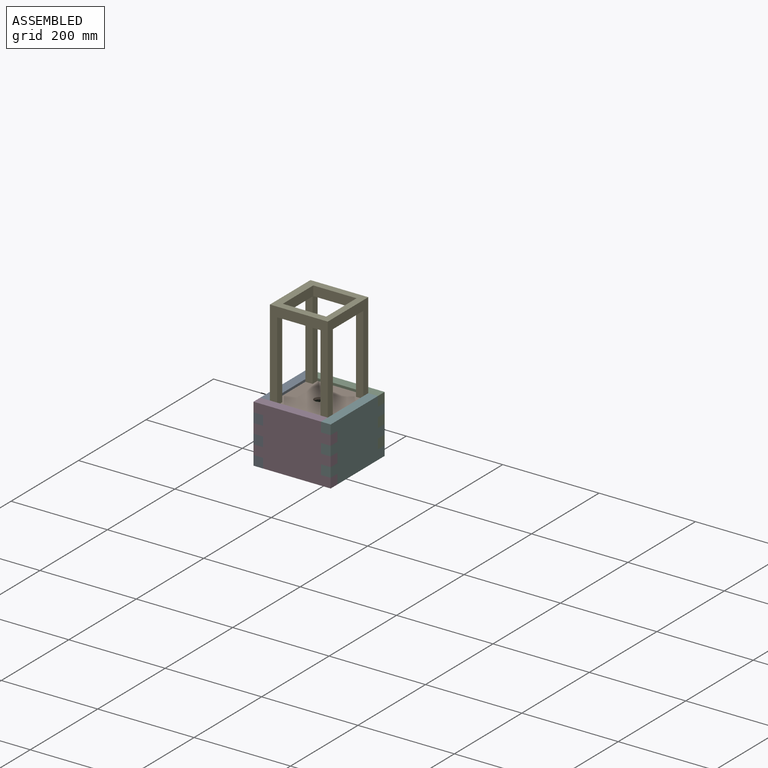
[diagram: assembled view]
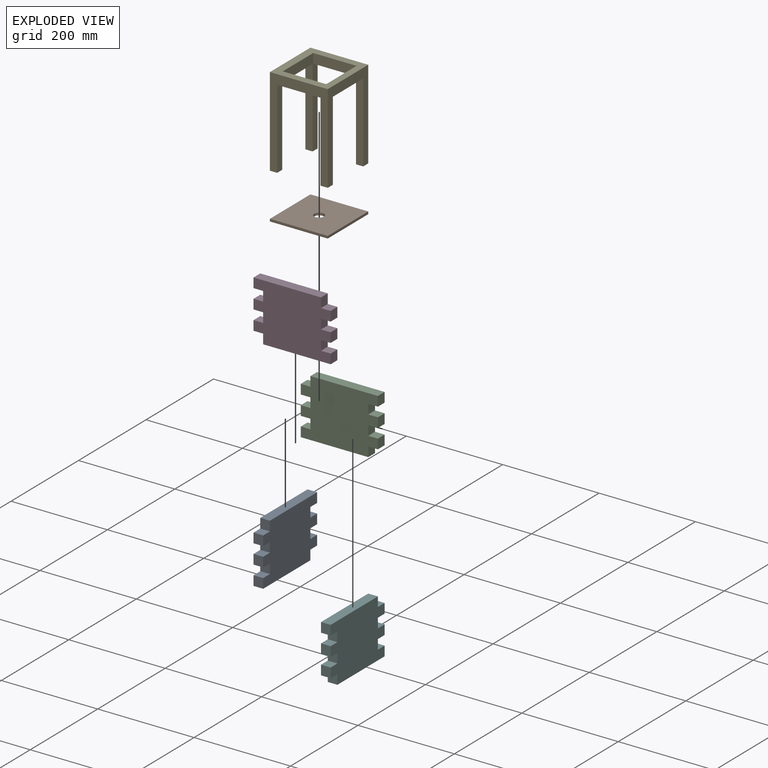
[diagram: exploded view]
GUIDED TOUR — MATED ASSEMBLY (Onshape document 1cd0963bb380c119aadb11ec, AutoMate assembly 1cd0963bb380c119aadb11ec_674d7fba9eb52455e5225506_035da7add2afbb42834716fa_default)

This assembly has 6 components, labeled P0..P5 below (a component is one placed occurrence of a part; the same part can appear more than once), held together by 4 mates. A mate is a constraint between two components; its type names the relative motion it leaves free:
  FASTENED — locks the two components together rigidly (no relative motion).
Axis/direction vectors are unit vectors and 'through' points are millimeter coordinates, both in the assembly's world frame.

MATES
  1. FASTENED "Fastened 2": P3 <-> P5, direction (0.000, 0.000, 1.000) through (-125.03, -306.60, 120.94) mm
  2. FASTENED "Fastened 3": P0 <-> P3, direction (0.000, 0.000, 1.000) through (-265.03, -306.60, 120.94) mm
  3. FASTENED "Fastened 1": P5 <-> P2, direction (0.000, 0.000, 1.000) through (-125.03, -166.60, 120.94) mm
  4. FASTENED "Fastened 5": P1 <-> P4, direction (0.000, 0.000, 1.000) through (-255.03, -296.60, 135.94) mm

ASSEMBLY ORDER
  1. P2 — the base component [order verified]
  2. P0 [order verified]
  3. P3 [order verified]
  4. P5 [order verified]
  5. P1 [order verified]
  6. P4 [order verified]
Order-tag legend:
  [order verified] — this step's position reverses a verified removal order: the component was checked to insert without passing through the ones already placed.

Of the 6 components, 6 carry the full construction recipe — the FeatureScript program that regenerates the part's solid from scratch; the rest are supplied as boundary geometry only.
Each toured component is shown spotlighted twice — in the assembled view, then in the exploded view, where a leader line traces a displaced component back to its assembled socket (saturated green if recipe-attached, orange if geometry-only; every other component desaturated gray) — followed by its recipe or geometry summary and the mates that hold it.
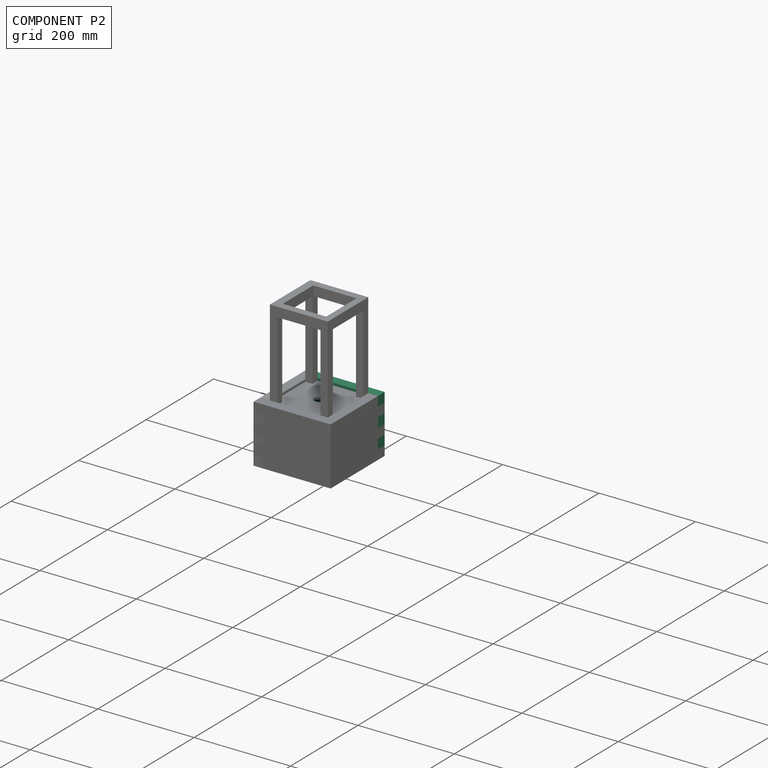
[diagram: component P2 — assembled]
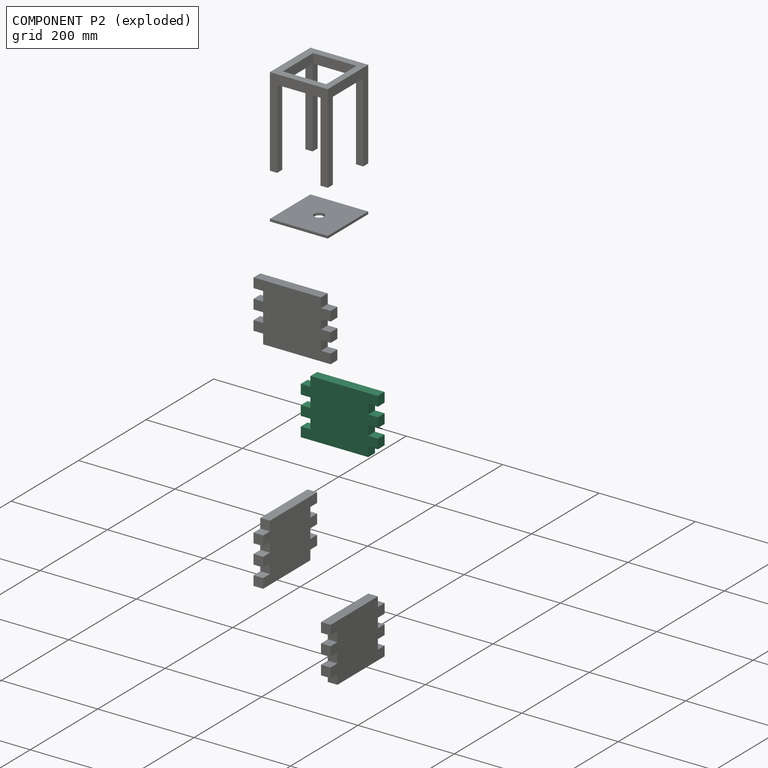
[diagram: component P2 — exploded]
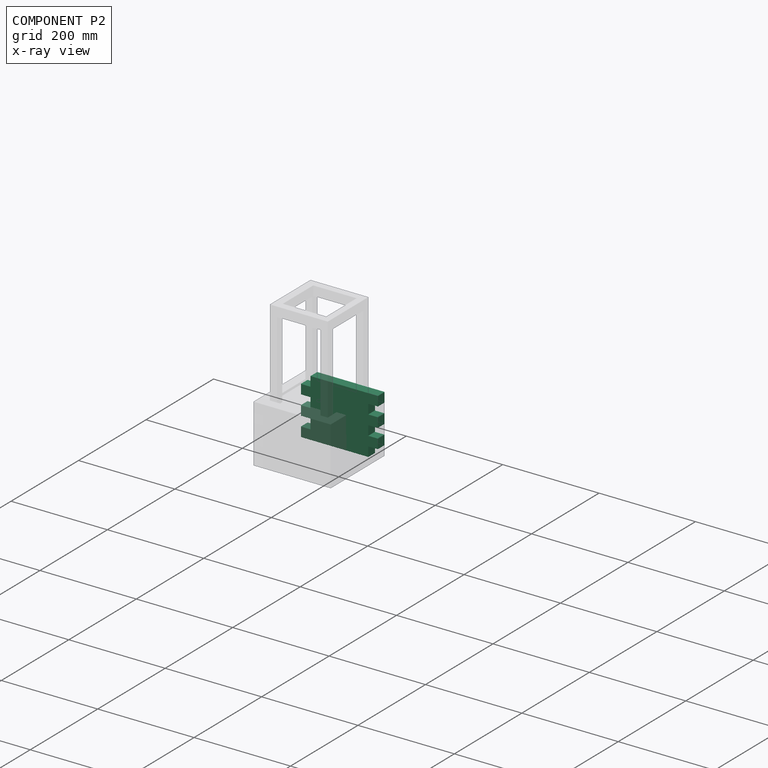
[diagram: component P2 — x-ray view]
COMPONENT P2 — same part as P0 (CADFS 00761114); its construction recipe is shown at P0.
Held by: FASTENED mate "Fastened 1" to P5.
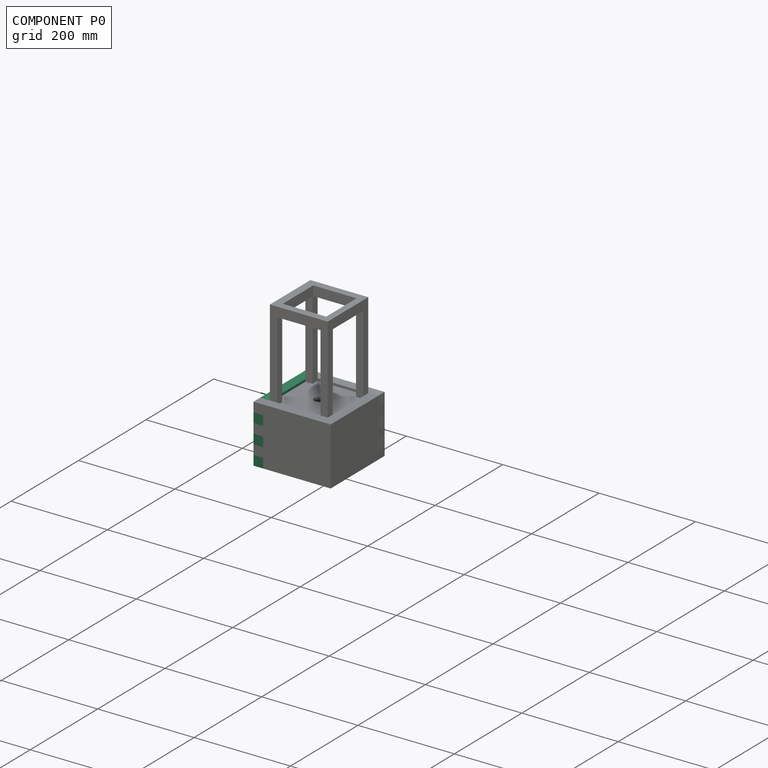
[diagram: component P0 — assembled]
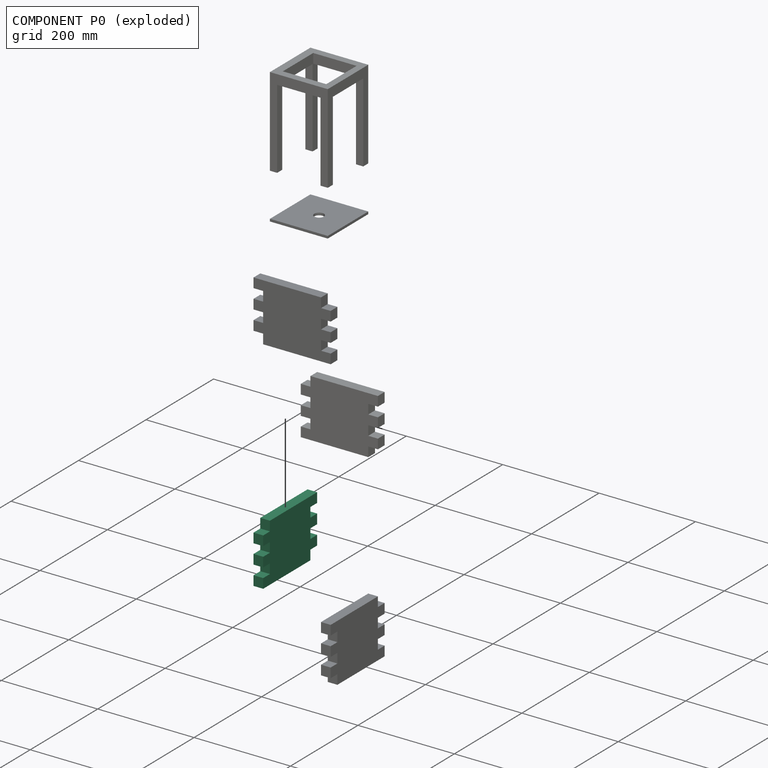
[diagram: component P0 — exploded]
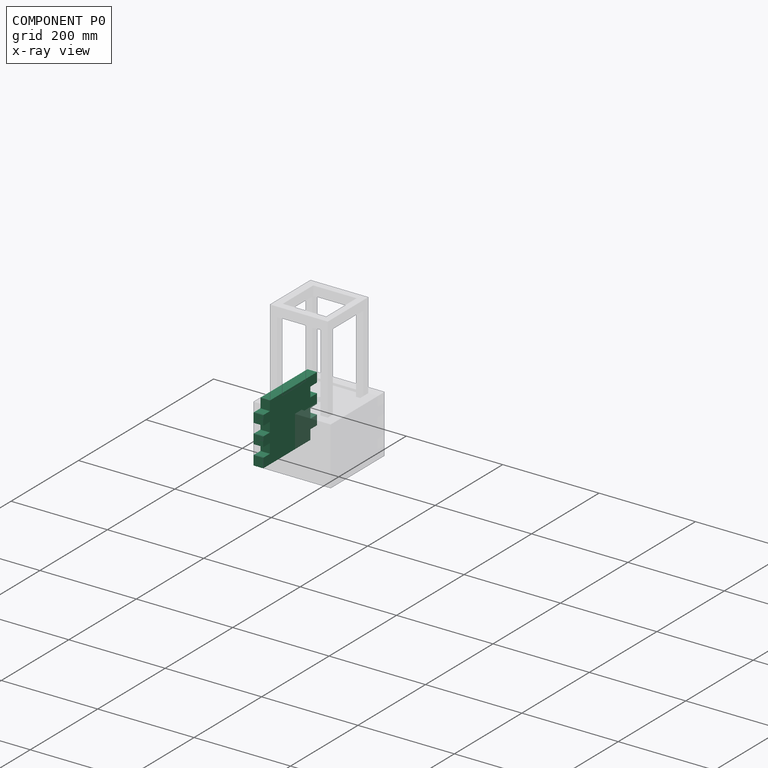
[diagram: component P0 — x-ray view]
COMPONENT P0 — recipe-attached (CADFS 00761114, mesh-verified: the recipe's output STEP matches this component's geometry to below the mesh-comparison resolution (tessellation chordal tolerance ~0.301 mm)).
Held by: FASTENED mate "Fastened 3" to P3.
Construction recipe (FeatureScript — the CAD program that rebuilds this solid; sketch coordinates are in the units given by the * unit suffixes, e.g. mm):

FeatureScript 1511;
import(path : "onshape/std/geometry.fs", version : "1511.0");
import(path : "onshape/std/common.fs", version : "1511.0");
const mm = millimeter;
const VERTEX = EntityType.VERTEX;
const EDGE = EntityType.EDGE;
const FACE = EntityType.FACE;
const BODY = EntityType.BODY;
function v(x, y){return vector(x, y);}
function OD(order){return orderDisambiguation(order);}
function OSD(set){return originalSetDisambiguation(set);}
function TD(topology){return topologyDisambiguation(topology);}
function TDD(query){return trueDependencyDisambiguation(query);}
function sQuery(a, b, c) {return sketchEntityQuery(a, b, c);}

annotation { "Feature Type Name" : "Feature", "Feature Type Description" : "" }
export const myFeature = defineFeature(function(context is Context, id is Id, definition is map)
    precondition{}
    {
        {
            var Q0;
            Q0=qCreatedBy(makeId("Right.planeOp"),FACE);
            var sketch = newSketch(context, id + "F0", { "sketchPlane" : qUnion([Q0])});
            skLineSegment(sketch, "E0.bottom", {"start": v(-244.9, 140.94) * mm, "end": v(-84.9, 140.94) * mm});
            skLineSegment(sketch, "E0.top", {"start": v(-244.9, 20.94) * mm, "end": v(-84.9, 20.94) * mm});
            skLineSegment(sketch, "E0.left", {"start": v(-244.9, 140.94) * mm, "end": v(-244.9, 20.94) * mm});
            skLineSegment(sketch, "E0.right", {"start": v(-84.9, 140.94) * mm, "end": v(-84.9, 20.94) * mm});
            skSolve(sketch);
        }
        {
            var Q0;
            Q0 = qSketchRegion(id + "F0", true);
            extrude(context, id + "F1", {"entities" : qUnion([Q0]), "depth" : 20 * mm, "offsetDistance" : 25 * mm});
        }
        {
            var Q0;
            Q0=makeQuery(id+"F1.opExtrude","CAP_FACE",FACE,{"disambiguationData":[OSD([sQuery(id+"F0.wireOp",EDGE,"E0.bottom"),sQuery(id+"F0.wireOp",EDGE,"E0.top"),sQuery(id+"F0.wireOp",EDGE,"E0.left"),sQuery(id+"F0.wireOp",EDGE,"E0.right")])],"isStart":false});
            var sketch = newSketch(context, id + "F2", { "sketchPlane" : qUnion([Q0])});
            skLineSegment(sketch, "E1.bottom", {"start": v(-244.9, 120.94) * mm, "end": v(-224.9, 120.94) * mm});
            skLineSegment(sketch, "E1.top", {"start": v(-244.9, 100.94) * mm, "end": v(-224.9, 100.94) * mm});
            skLineSegment(sketch, "E1.left", {"start": v(-244.9, 120.94) * mm, "end": v(-244.9, 100.94) * mm});
            skLineSegment(sketch, "E1.right", {"start": v(-224.9, 120.94) * mm, "end": v(-224.9, 100.94) * mm});
            skSolve(sketch);
        }
        {
            var Q0;
            Q0 = qSketchRegion(id + "F2", true);
            extrude(context, id + "F3", {"entities" : qUnion([Q0]), "operationType" : NewBodyOperationType.REMOVE, "oppositeDirection" : true, "depth" : 20 * mm, "offsetDistance" : 25 * mm});
        }
        {
            var Q0;
            Q0=makeQuery(id+"F1.opExtrude","CAP_FACE",FACE,{"disambiguationData":[OSD([sQuery(id+"F0.wireOp",EDGE,"E0.bottom"),sQuery(id+"F0.wireOp",EDGE,"E0.top"),sQuery(id+"F0.wireOp",EDGE,"E0.left"),sQuery(id+"F0.wireOp",EDGE,"E0.right")])],"isStart":false});
            var sketch = newSketch(context, id + "F4", { "sketchPlane" : qUnion([Q0])});
            skLineSegment(sketch, "E2.bottom", {"start": v(-244.9, 80.94) * mm, "end": v(-224.9, 80.94) * mm});
            skLineSegment(sketch, "E2.top", {"start": v(-244.9, 60.94) * mm, "end": v(-224.9, 60.94) * mm});
            skLineSegment(sketch, "E2.left", {"start": v(-244.9, 80.94) * mm, "end": v(-244.9, 60.94) * mm});
            skLineSegment(sketch, "E2.right", {"start": v(-224.9, 80.94) * mm, "end": v(-224.9, 60.94) * mm});
            skSolve(sketch);
        }
        {
            var Q0;
            Q0 = qSketchRegion(id + "F4", true);
            extrude(context, id + "F5", {"entities" : qUnion([Q0]), "operationType" : NewBodyOperationType.REMOVE, "oppositeDirection" : true, "depth" : 20 * mm, "offsetDistance" : 25 * mm});
        }
        {
            var Q0;
            Q0=makeQuery(id+"F1.opExtrude","CAP_FACE",FACE,{"disambiguationData":[OSD([sQuery(id+"F0.wireOp",EDGE,"E0.bottom"),sQuery(id+"F0.wireOp",EDGE,"E0.top"),sQuery(id+"F0.wireOp",EDGE,"E0.left"),sQuery(id+"F0.wireOp",EDGE,"E0.right")])],"isStart":false});
            var sketch = newSketch(context, id + "F6", { "sketchPlane" : qUnion([Q0])});
            skLineSegment(sketch, "E3.bottom", {"start": v(-244.9, 20.94) * mm, "end": v(-224.9, 20.94) * mm});
            skLineSegment(sketch, "E3.top", {"start": v(-244.9, 40.94) * mm, "end": v(-224.9, 40.94) * mm});
            skLineSegment(sketch, "E3.left", {"start": v(-244.9, 20.94) * mm, "end": v(-244.9, 40.94) * mm});
            skLineSegment(sketch, "E3.right", {"start": v(-224.9, 20.94) * mm, "end": v(-224.9, 40.94) * mm});
            skSolve(sketch);
        }
        {
            var Q0;
            Q0 = qSketchRegion(id + "F6", true);
            extrude(context, id + "F7", {"entities" : qUnion([Q0]), "operationType" : NewBodyOperationType.REMOVE, "oppositeDirection" : true, "depth" : 20 * mm, "offsetDistance" : 25 * mm});
        }
        {
            var Q0;
            Q0=makeQuery(id+"F1.opExtrude","CAP_FACE",FACE,{"disambiguationData":[OSD([sQuery(id+"F0.wireOp",EDGE,"E0.bottom"),sQuery(id+"F0.wireOp",EDGE,"E0.top"),sQuery(id+"F0.wireOp",EDGE,"E0.left"),sQuery(id+"F0.wireOp",EDGE,"E0.right")])],"isStart":false});
            var sketch = newSketch(context, id + "F8", { "sketchPlane" : qUnion([Q0])});
            skLineSegment(sketch, "E4.bottom", {"start": v(-84.9, 140.94) * mm, "end": v(-104.9, 140.94) * mm});
            skLineSegment(sketch, "E4.top", {"start": v(-84.9, 120.94) * mm, "end": v(-104.9, 120.94) * mm});
            skLineSegment(sketch, "E4.left", {"start": v(-84.9, 140.94) * mm, "end": v(-84.9, 120.94) * mm});
            skLineSegment(sketch, "E4.right", {"start": v(-104.9, 140.94) * mm, "end": v(-104.9, 120.94) * mm});
            skSolve(sketch);
        }
        {
            var Q0;
            Q0 = qSketchRegion(id + "F8", true);
            extrude(context, id + "F9", {"entities" : qUnion([Q0]), "operationType" : NewBodyOperationType.REMOVE, "oppositeDirection" : true, "depth" : 20 * mm, "offsetDistance" : 25 * mm});
        }
        {
            var Q0;
            Q0=makeQuery(id+"F1.opExtrude","CAP_FACE",FACE,{"disambiguationData":[OSD([sQuery(id+"F0.wireOp",EDGE,"E0.bottom"),sQuery(id+"F0.wireOp",EDGE,"E0.top"),sQuery(id+"F0.wireOp",EDGE,"E0.left"),sQuery(id+"F0.wireOp",EDGE,"E0.right")])],"isStart":false});
            var sketch = newSketch(context, id + "F10", { "sketchPlane" : qUnion([Q0])});
            skLineSegment(sketch, "E5.bottom", {"start": v(-84.9, 100.94) * mm, "end": v(-104.9, 100.94) * mm});
            skLineSegment(sketch, "E5.top", {"start": v(-84.9, 80.94) * mm, "end": v(-104.9, 80.94) * mm});
            skLineSegment(sketch, "E5.left", {"start": v(-84.9, 100.94) * mm, "end": v(-84.9, 80.94) * mm});
            skLineSegment(sketch, "E5.right", {"start": v(-104.9, 100.94) * mm, "end": v(-104.9, 80.94) * mm});
            skSolve(sketch);
        }
        {
            var Q0;
            Q0 = qSketchRegion(id + "F10", true);
            extrude(context, id + "F11", {"entities" : qUnion([Q0]), "operationType" : NewBodyOperationType.REMOVE, "oppositeDirection" : true, "depth" : 20 * mm, "offsetDistance" : 25 * mm});
        }
        {
            var Q0;
            Q0=makeQuery(id+"F1.opExtrude","CAP_FACE",FACE,{"disambiguationData":[OSD([sQuery(id+"F0.wireOp",EDGE,"E0.bottom"),sQuery(id+"F0.wireOp",EDGE,"E0.top"),sQuery(id+"F0.wireOp",EDGE,"E0.left"),sQuery(id+"F0.wireOp",EDGE,"E0.right")])],"isStart":false});
            var sketch = newSketch(context, id + "F12", { "sketchPlane" : qUnion([Q0])});
            skLineSegment(sketch, "E6.bottom", {"start": v(-84.9, 60.94) * mm, "end": v(-104.9, 60.94) * mm});
            skLineSegment(sketch, "E6.top", {"start": v(-84.9, 40.94) * mm, "end": v(-104.9, 40.94) * mm});
            skLineSegment(sketch, "E6.left", {"start": v(-84.9, 60.94) * mm, "end": v(-84.9, 40.94) * mm});
            skLineSegment(sketch, "E6.right", {"start": v(-104.9, 60.94) * mm, "end": v(-104.9, 40.94) * mm});
            skSolve(sketch);
        }
        {
            var Q0;
            Q0 = qSketchRegion(id + "F12", true);
            extrude(context, id + "F13", {"entities" : qUnion([Q0]), "operationType" : NewBodyOperationType.REMOVE, "oppositeDirection" : true, "depth" : 20 * mm, "offsetDistance" : 25 * mm});
        }
    });
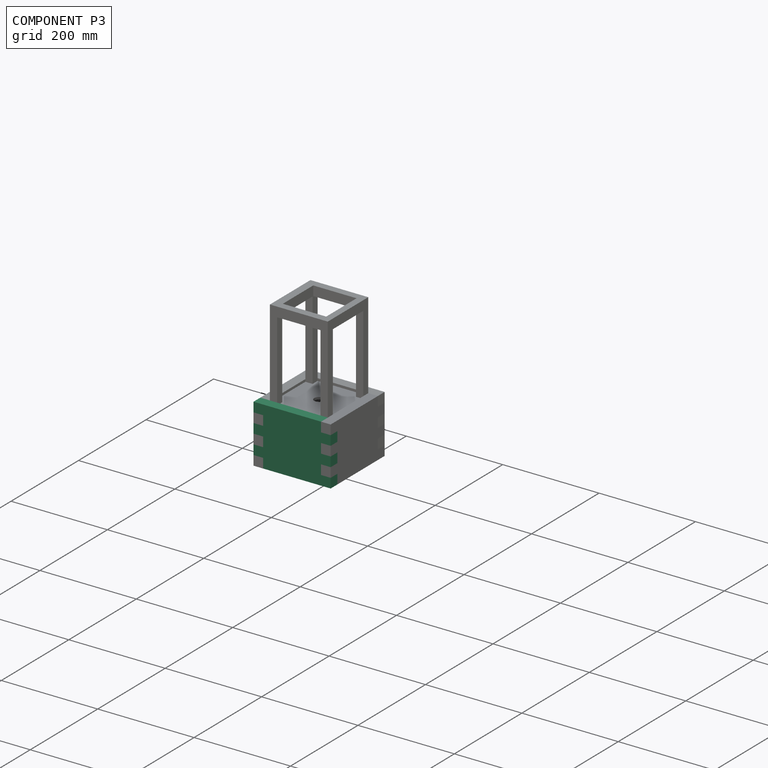
[diagram: component P3 — assembled]
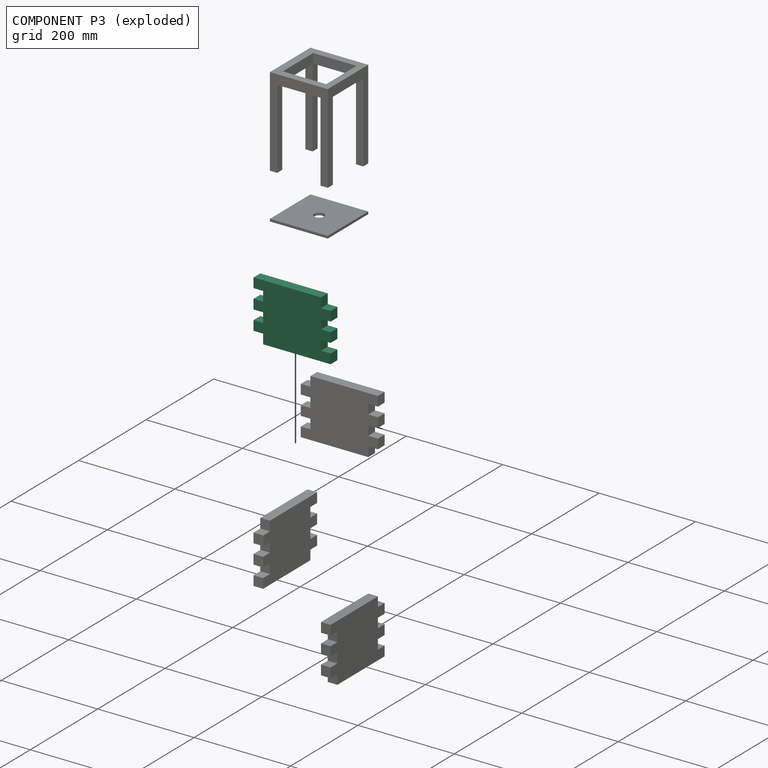
[diagram: component P3 — exploded]
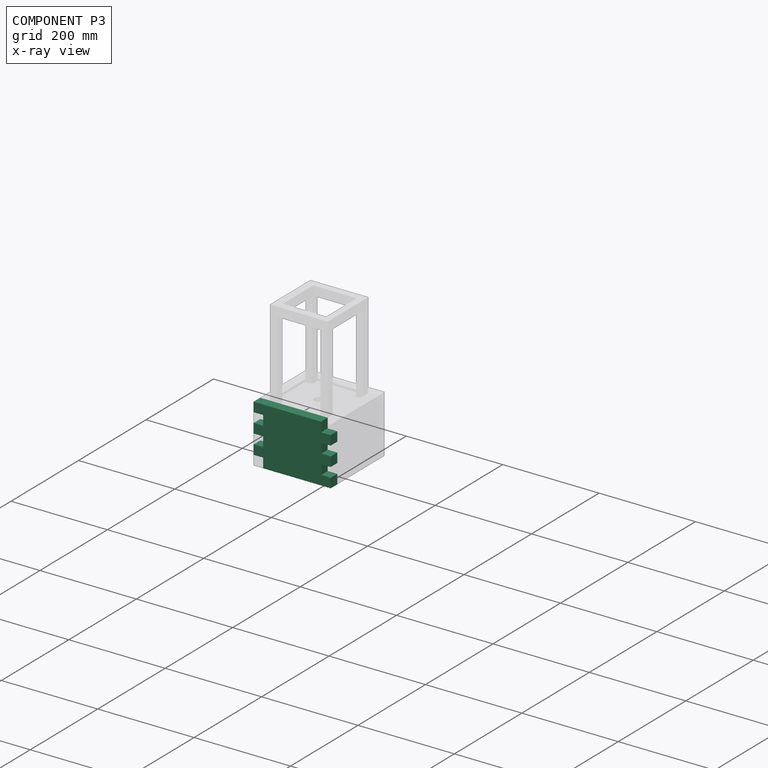
[diagram: component P3 — x-ray view]
COMPONENT P3 — same part as P0 (CADFS 00761114); its construction recipe is shown at P0.
Held by: FASTENED mate "Fastened 2" to P5; FASTENED mate "Fastened 3" to P0.
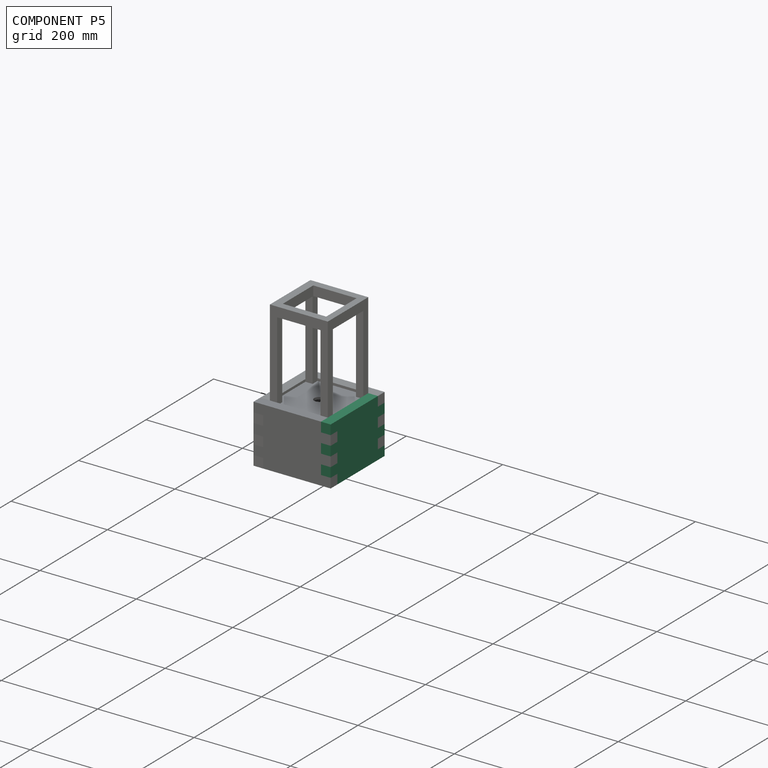
[diagram: component P5 — assembled]
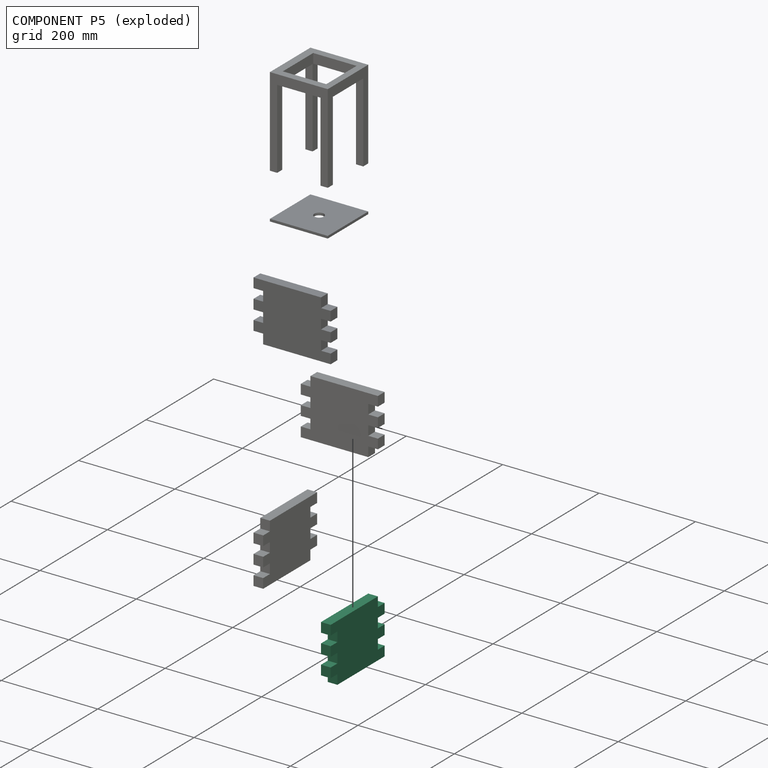
[diagram: component P5 — exploded]
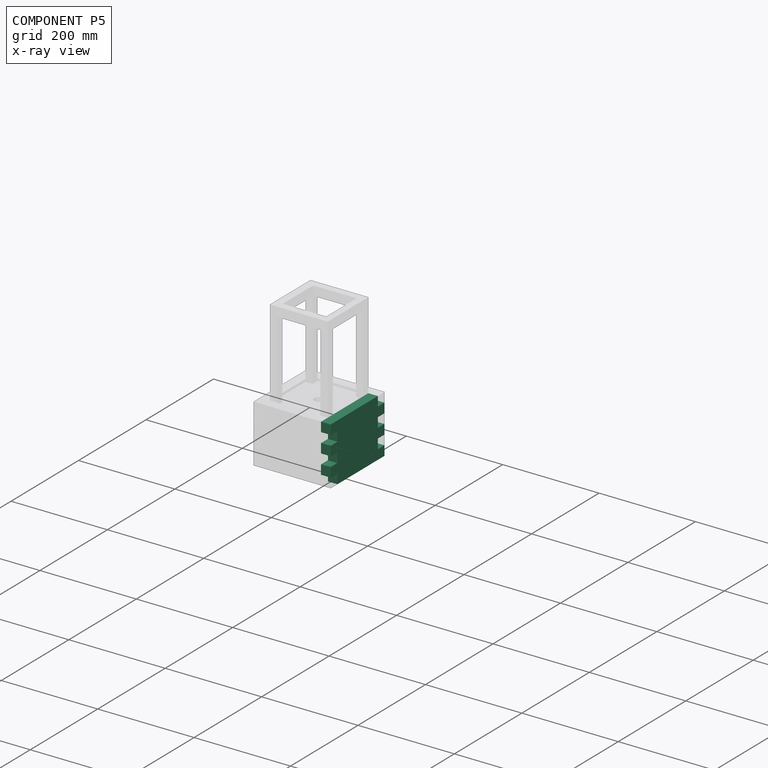
[diagram: component P5 — x-ray view]
COMPONENT P5 — same part as P0 (CADFS 00761114); its construction recipe is shown at P0.
Held by: FASTENED mate "Fastened 2" to P3; FASTENED mate "Fastened 1" to P2.
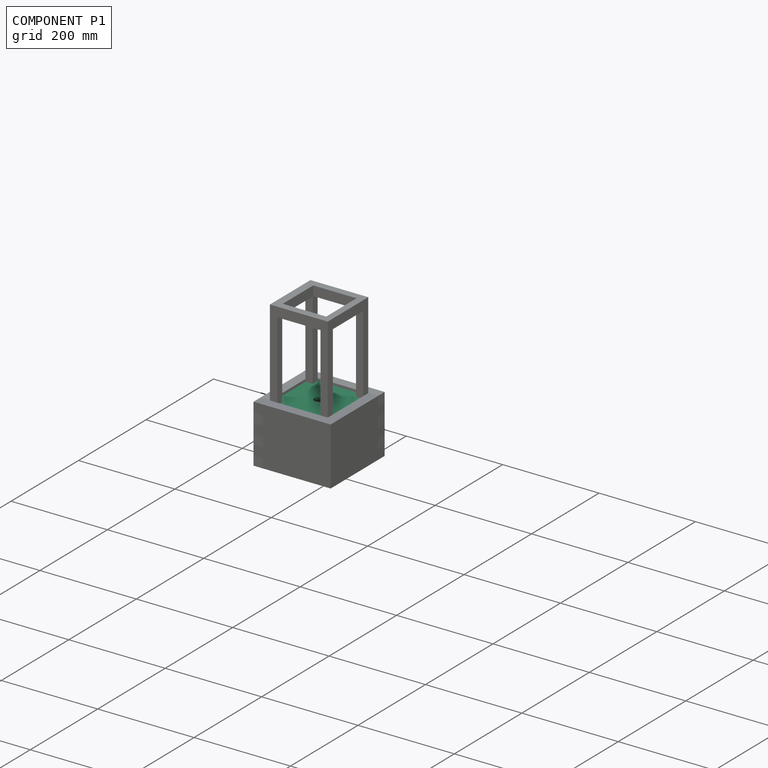
[diagram: component P1 — assembled]
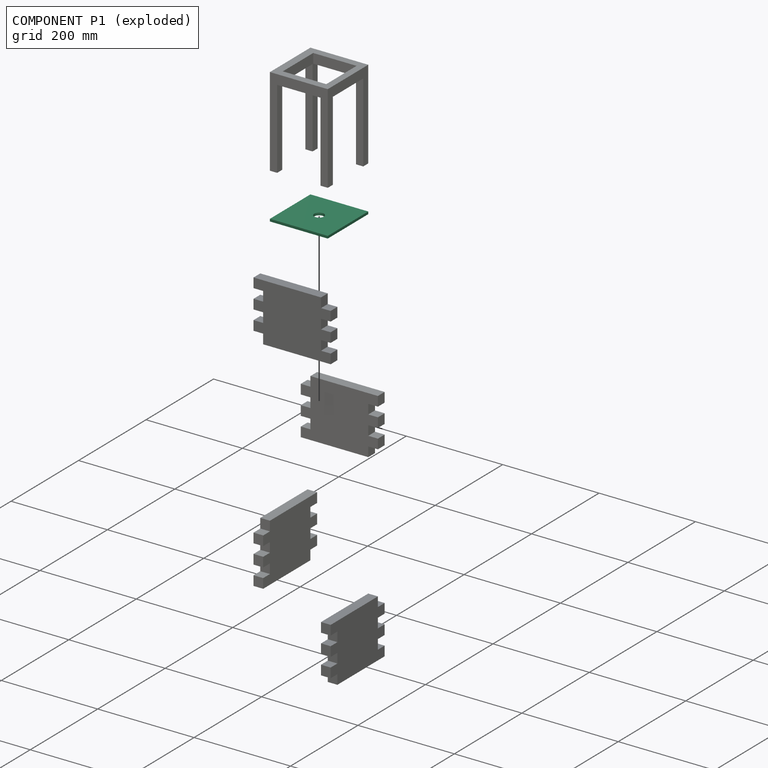
[diagram: component P1 — exploded]
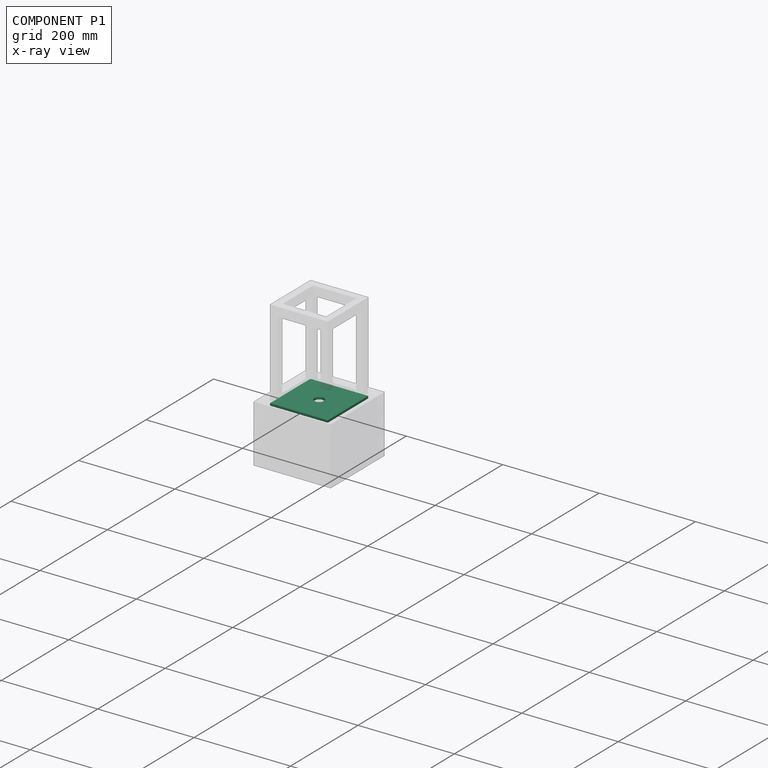
[diagram: component P1 — x-ray view]
COMPONENT P1 — recipe-attached (CADFS 00761118, mesh-verified: the recipe's output STEP matches this component's geometry to below the mesh-comparison resolution (tessellation chordal tolerance ~0.255 mm)).
Held by: FASTENED mate "Fastened 5" to P4.
Construction recipe (FeatureScript — the CAD program that rebuilds this solid; sketch coordinates are in the units given by the * unit suffixes, e.g. mm):

FeatureScript 1511;
import(path : "onshape/std/geometry.fs", version : "1511.0");
import(path : "onshape/std/common.fs", version : "1511.0");
const mm = millimeter;
const VERTEX = EntityType.VERTEX;
const EDGE = EntityType.EDGE;
const FACE = EntityType.FACE;
const BODY = EntityType.BODY;
function v(x, y){return vector(x, y);}
function OD(order){return orderDisambiguation(order);}
function OSD(set){return originalSetDisambiguation(set);}
function TD(topology){return topologyDisambiguation(topology);}
function TDD(query){return trueDependencyDisambiguation(query);}
function sQuery(a, b, c) {return sketchEntityQuery(a, b, c);}

annotation { "Feature Type Name" : "Feature", "Feature Type Description" : "" }
export const myFeature = defineFeature(function(context is Context, id is Id, definition is map)
    precondition{}
    {
        {
            var Q0;
            Q0=qCreatedBy(makeId("Top.planeOp"),FACE);
            var sketch = newSketch(context, id + "F0", { "sketchPlane" : qUnion([Q0])});
            skLineSegment(sketch, "E0.bottom", {"start": v(-52.94, 74.56) * mm, "end": v(67.06, 74.56) * mm});
            skLineSegment(sketch, "E0.top", {"start": v(-52.94, -45.44) * mm, "end": v(67.06, -45.44) * mm});
            skLineSegment(sketch, "E0.left", {"start": v(-52.94, 74.56) * mm, "end": v(-52.94, -45.44) * mm});
            skLineSegment(sketch, "E0.right", {"start": v(67.06, 74.56) * mm, "end": v(67.06, -45.44) * mm});
            skSolve(sketch);
        }
        {
            var Q0;
            Q0 = qSketchRegion(id + "F0", true);
            extrude(context, id + "F1", {"entities" : qUnion([Q0]), "depth" : 5 * mm, "offsetDistance" : 25 * mm});
        }
        {
            var Q0;
            Q0=makeQuery(id+"F1.opExtrude","CAP_FACE",FACE,{"disambiguationData":[OSD([sQuery(id+"F0.wireOp",EDGE,"E0.bottom"),sQuery(id+"F0.wireOp",EDGE,"E0.top"),sQuery(id+"F0.wireOp",EDGE,"E0.left"),sQuery(id+"F0.wireOp",EDGE,"E0.right")])],"isStart":false});
            var sketch = newSketch(context, id + "F2", { "sketchPlane" : qUnion([Q0])});
            skCircle(sketch, "E1", {"center": v(7.06, 14.56) * mm, "radius": 10 * mm});
            skPoint(sketch, "E1.centerSnap0", {"position": v(7.06, 74.56) * mm});
            skPoint(sketch, "E1.centerSnap1", {"position": v(-52.94, 14.56) * mm});
            skSolve(sketch);
        }
        {
            var Q0;
            Q0 = qSketchRegion(id + "F2", true);
            extrude(context, id + "F3", {"entities" : qUnion([Q0]), "operationType" : NewBodyOperationType.REMOVE, "oppositeDirection" : true, "depth" : 25 * mm, "offsetDistance" : 25 * mm});
        }
    });
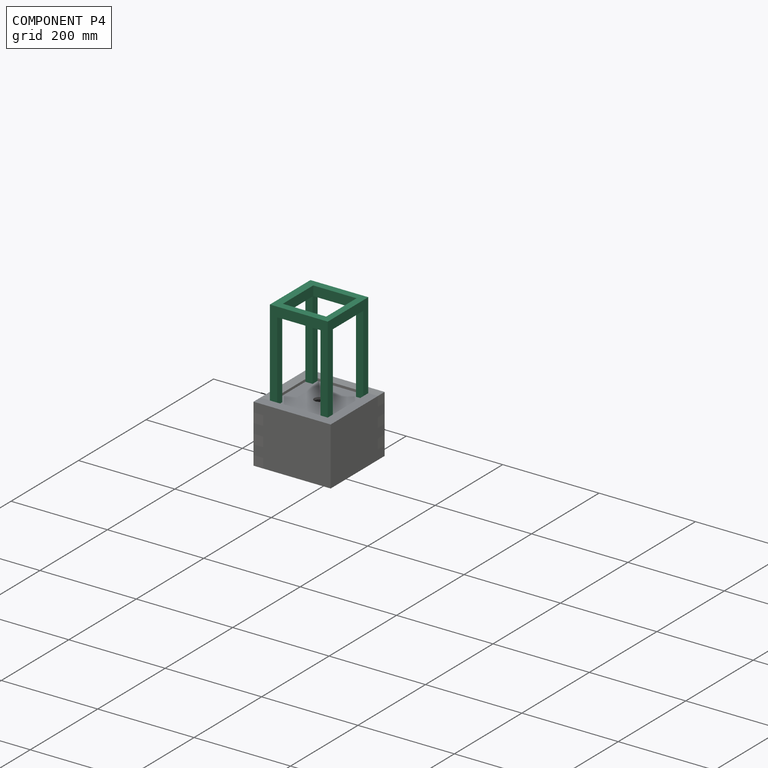
[diagram: component P4 — assembled]
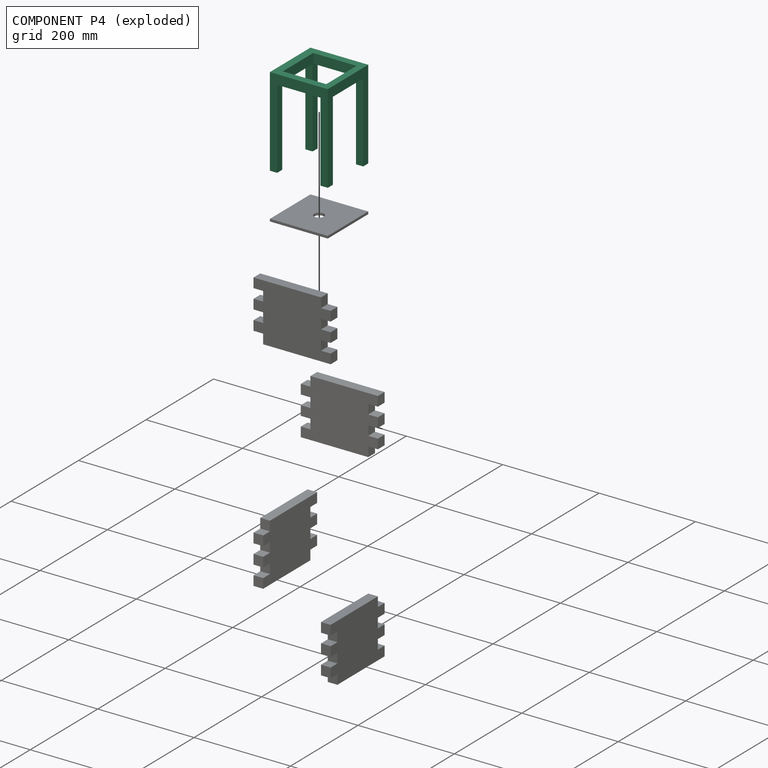
[diagram: component P4 — exploded]
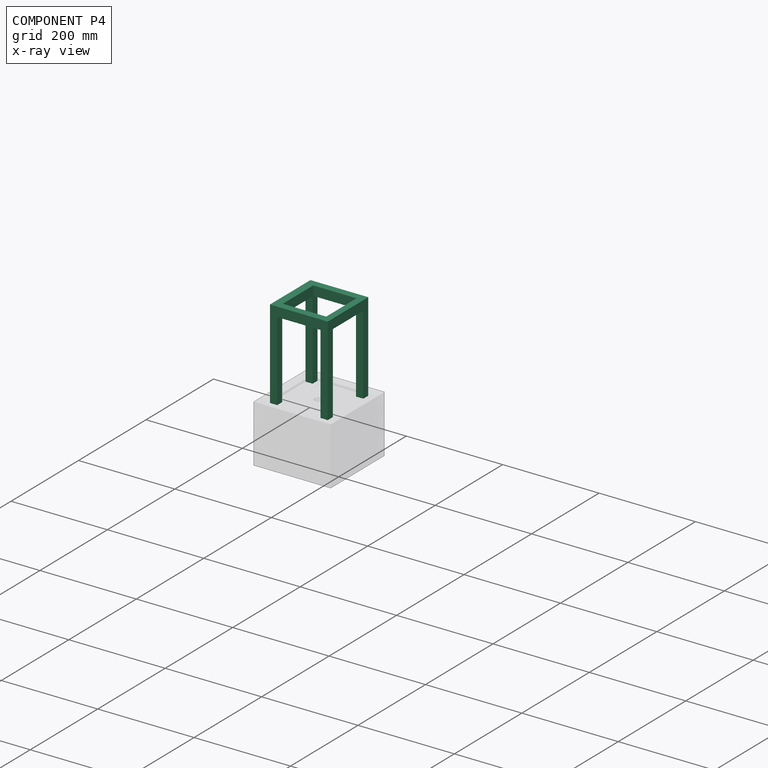
[diagram: component P4 — x-ray view]
COMPONENT P4 — recipe-attached (CADFS 00761119, mesh-verified: the recipe's output STEP matches this component's geometry to below the mesh-comparison resolution (tessellation chordal tolerance ~0.377 mm)).
Held by: FASTENED mate "Fastened 5" to P1.
Construction recipe (FeatureScript — the CAD program that rebuilds this solid; sketch coordinates are in the units given by the * unit suffixes, e.g. mm):

FeatureScript 1511;
import(path : "onshape/std/geometry.fs", version : "1511.0");
import(path : "onshape/std/common.fs", version : "1511.0");
const mm = millimeter;
const VERTEX = EntityType.VERTEX;
const EDGE = EntityType.EDGE;
const FACE = EntityType.FACE;
const BODY = EntityType.BODY;
function v(x, y){return vector(x, y);}
function OD(order){return orderDisambiguation(order);}
function OSD(set){return originalSetDisambiguation(set);}
function TD(topology){return topologyDisambiguation(topology);}
function TDD(query){return trueDependencyDisambiguation(query);}
function sQuery(a, b, c) {return sketchEntityQuery(a, b, c);}

annotation { "Feature Type Name" : "Feature", "Feature Type Description" : "" }
export const myFeature = defineFeature(function(context is Context, id is Id, definition is map)
    precondition{}
    {
        {
            var Q0;
            Q0=qCreatedBy(makeId("Top.planeOp"),FACE);
            var sketch = newSketch(context, id + "F0", { "sketchPlane" : qUnion([Q0])});
            skLineSegment(sketch, "E0.bottom", {"start": v(-60.62, 87.3) * mm, "end": v(59.38, 87.3) * mm});
            skLineSegment(sketch, "E0.top", {"start": v(-60.62, -32.7) * mm, "end": v(59.38, -32.7) * mm});
            skLineSegment(sketch, "E0.left", {"start": v(-60.62, 87.3) * mm, "end": v(-60.62, -32.7) * mm});
            skLineSegment(sketch, "E0.right", {"start": v(59.38, 87.3) * mm, "end": v(59.38, -32.7) * mm});
            skSolve(sketch);
        }
        {
            var Q0;
            Q0 = qSketchRegion(id + "F0", true);
            extrude(context, id + "F1", {"entities" : qUnion([Q0]), "depth" : 5 * mm, "offsetDistance" : 25 * mm});
        }
        {
            var Q0;
            Q0=makeQuery(id+"F1.opExtrude","CAP_FACE",FACE,{"disambiguationData":[OSD([sQuery(id+"F0.wireOp",EDGE,"E0.bottom"),sQuery(id+"F0.wireOp",EDGE,"E0.top"),sQuery(id+"F0.wireOp",EDGE,"E0.left"),sQuery(id+"F0.wireOp",EDGE,"E0.right")])],"isStart":false});
            var sketch = newSketch(context, id + "F2", { "sketchPlane" : qUnion([Q0])});
            skCircle(sketch, "E1", {"center": v(-0.62, 27.3) * mm, "radius": 12.5 * mm});
            skPoint(sketch, "E1.centerSnap0", {"position": v(-60.62, 27.3) * mm});
            skPoint(sketch, "E1.centerSnap1", {"position": v(-0.62, 87.3) * mm});
            skSolve(sketch);
        }
        {
            var Q0;
            Q0 = qSketchRegion(id + "F2", true);
            extrude(context, id + "F3", {"entities" : qUnion([Q0]), "operationType" : NewBodyOperationType.REMOVE, "oppositeDirection" : true, "depth" : 25 * mm, "offsetDistance" : 25 * mm});
        }
        {
            var Q0;
            Q0=makeQuery(id+"F1.opExtrude","CAP_FACE",FACE,{"disambiguationData":[OSD([sQuery(id+"F0.wireOp",EDGE,"E0.bottom"),sQuery(id+"F0.wireOp",EDGE,"E0.top"),sQuery(id+"F0.wireOp",EDGE,"E0.left"),sQuery(id+"F0.wireOp",EDGE,"E0.right")])],"isStart":false});
            var sketch = newSketch(context, id + "F4", { "sketchPlane" : qUnion([Q0])});
            skLineSegment(sketch, "E2.bottom", {"start": v(-60.62, -32.7) * mm, "end": v(59.38, -32.7) * mm});
            skLineSegment(sketch, "E2.top", {"start": v(-60.62, 87.3) * mm, "end": v(59.38, 87.3) * mm});
            skLineSegment(sketch, "E2.left", {"start": v(-60.62, -32.7) * mm, "end": v(-60.62, 87.3) * mm});
            skLineSegment(sketch, "E2.right", {"start": v(59.38, -32.7) * mm, "end": v(59.38, 87.3) * mm});
            skSolve(sketch);
        }
        {
            var Q0;
            Q0 = qSketchRegion(id + "F4", true);
            extrude(context, id + "F5", {"entities" : qUnion([Q0]), "operationType" : NewBodyOperationType.ADD, "depth" : 180 * mm, "offsetDistance" : 25 * mm});
        }
        {
            var Q0;
            Q0=makeQuery(id+"F5.boolean.opBoolean","MERGE",FACE,{"derivedFrom":[makeQuery(id+"F1.opExtrude","SWEPT_FACE",FACE,{"disambiguationData":[OSD([sQuery(id+"F0.wireOp",EDGE,"E0.top")])]}),makeQuery(id+"F5.opExtrude","SWEPT_FACE",FACE,{"disambiguationData":[OSD([sQuery(id+"F4.wireOp",EDGE,"E2.bottom")])]})]});
            var sketch = newSketch(context, id + "F6", { "sketchPlane" : qUnion([Q0])});
            skLineSegment(sketch, "E3.bottom", {"start": v(-45.62, 165) * mm, "end": v(44.38, 165) * mm});
            skLineSegment(sketch, "E3.top", {"start": v(-45.62, 0) * mm, "end": v(44.38, 0) * mm});
            skLineSegment(sketch, "E3.left", {"start": v(-45.62, 165) * mm, "end": v(-45.62, 0) * mm});
            skLineSegment(sketch, "E3.right", {"start": v(44.38, 165) * mm, "end": v(44.38, 0) * mm});
            skSolve(sketch);
        }
        {
            var Q0;
            Q0 = qSketchRegion(id + "F6", true);
            extrude(context, id + "F7", {"entities" : qUnion([Q0]), "operationType" : NewBodyOperationType.REMOVE, "oppositeDirection" : true, "depth" : 120 * mm, "offsetDistance" : 25 * mm});
        }
        {
            var Q0;
            Q0=makeQuery(id+"F5.boolean.opBoolean","MERGE",FACE,{"derivedFrom":[makeQuery(id+"F1.opExtrude","SWEPT_FACE",FACE,{"disambiguationData":[OSD([sQuery(id+"F0.wireOp",EDGE,"E0.left")])]}),makeQuery(id+"F5.opExtrude","SWEPT_FACE",FACE,{"disambiguationData":[OSD([sQuery(id+"F4.wireOp",EDGE,"E2.left")])]})]});
            var sketch = newSketch(context, id + "F8", { "sketchPlane" : qUnion([Q0])});
            skLineSegment(sketch, "E4.bottom", {"start": v(-72.3, 165) * mm, "end": v(17.7, 165) * mm});
            skLineSegment(sketch, "E4.top", {"start": v(-72.3, 0) * mm, "end": v(17.7, 0) * mm});
            skLineSegment(sketch, "E4.left", {"start": v(-72.3, 165) * mm, "end": v(-72.3, 0) * mm});
            skLineSegment(sketch, "E4.right", {"start": v(17.7, 165) * mm, "end": v(17.7, 0) * mm});
            skSolve(sketch);
        }
        {
            var Q0;
            Q0 = qSketchRegion(id + "F8", true);
            extrude(context, id + "F9", {"entities" : qUnion([Q0]), "operationType" : NewBodyOperationType.REMOVE, "oppositeDirection" : true, "depth" : 120 * mm, "offsetDistance" : 25 * mm});
        }
        {
            var Q0;
            Q0=makeQuery(id+"F5.opExtrude","CAP_FACE",FACE,{"disambiguationData":[OSD([sQuery(id+"F4.wireOp",EDGE,"E2.bottom"),sQuery(id+"F4.wireOp",EDGE,"E2.top"),sQuery(id+"F4.wireOp",EDGE,"E2.left"),sQuery(id+"F4.wireOp",EDGE,"E2.right")])],"isStart":false});
            var sketch = newSketch(context, id + "F10", { "sketchPlane" : qUnion([Q0])});
            skLineSegment(sketch, "E5.bottom", {"start": v(-44.35, 72.3) * mm, "end": v(45.65, 72.3) * mm});
            skLineSegment(sketch, "E5.top", {"start": v(-44.35, -17.7) * mm, "end": v(45.65, -17.7) * mm});
            skLineSegment(sketch, "E5.left", {"start": v(-44.35, 72.3) * mm, "end": v(-44.35, -17.7) * mm});
            skLineSegment(sketch, "E5.right", {"start": v(45.65, 72.3) * mm, "end": v(45.65, -17.7) * mm});
            skSolve(sketch);
        }
        {
            var Q0;
            Q0 = qSketchRegion(id + "F10", true);
            extrude(context, id + "F11", {"entities" : qUnion([Q0]), "operationType" : NewBodyOperationType.REMOVE, "oppositeDirection" : true, "depth" : 25 * mm, "offsetDistance" : 25 * mm});
        }
    });
PROVENANCE & LICENSES
Assembly (occurrences, transforms, mates, per-part STEP geometry): AutoMate dataset, Zenodo record 7776208, CC0.
Construction recipes: CADFS (HuggingFace VladPyatov/CADFS, CC-BY-4.0, layered over the ABC dataset), FeatureScript reconstruction programs keyed by ABC model id.
Join: ABC meta listings map ABC model id -> Onshape documentId; within a shared document, parts are matched by geometric signature (bounding-box dims + volume at 0.1% relative tolerance, exact B-rep face/solid counts).
Verification: 6 of this assembly's 6 components carry a recipe attachment, and every attachment is mesh-verified: the CADFS STEP and the AutoMate member STEP were compared as meshes in their shared local frame (symmetric sampled-point-to-mesh distance); worst across the 6 attachments: below the mesh-comparison resolution (tessellation chordal tolerance ~0.377 mm) on a 251 mm part.
Renders: orthographic iso camera (az 35 / el 25); the floor grid conveys scale (grid pitch printed in each image; no ruler). In the exploded view each component is displaced by its stored offset vector: the offsets alone carry the explosion direction (mate normal/axis signs are not orientation cues and do not encode it), and separation distances are assigned per mate-chain, not proportionally to assembly-order depth.
